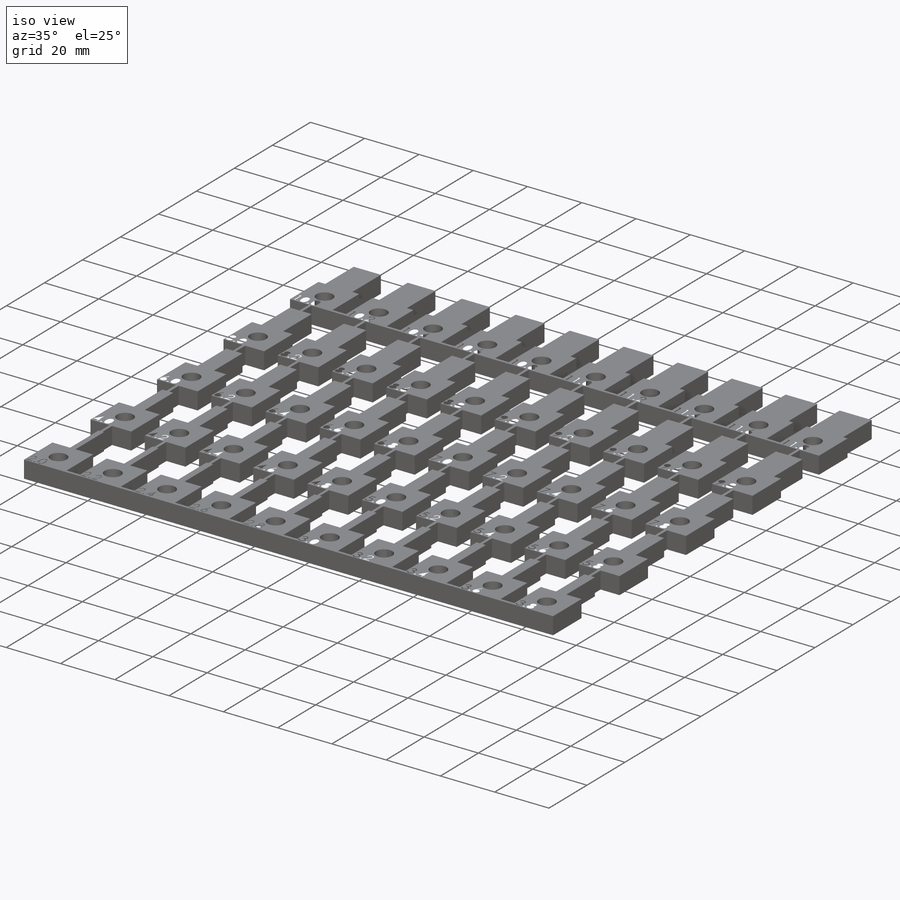
[diagram: iso view]
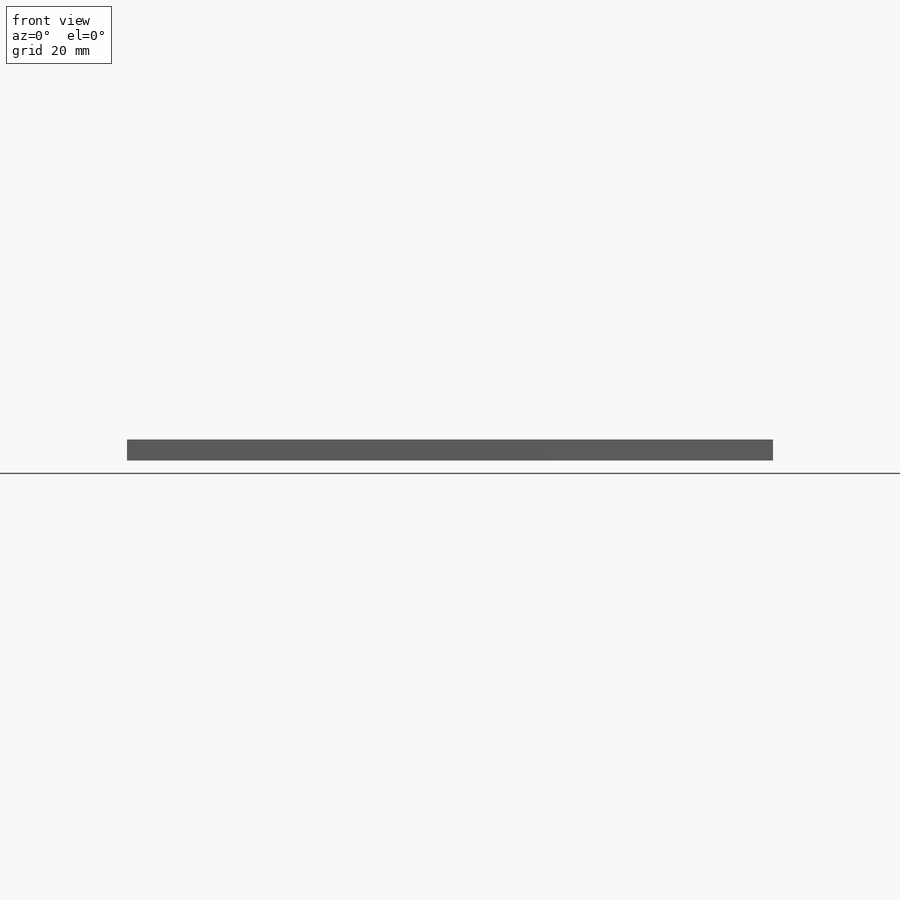
[diagram: front view]
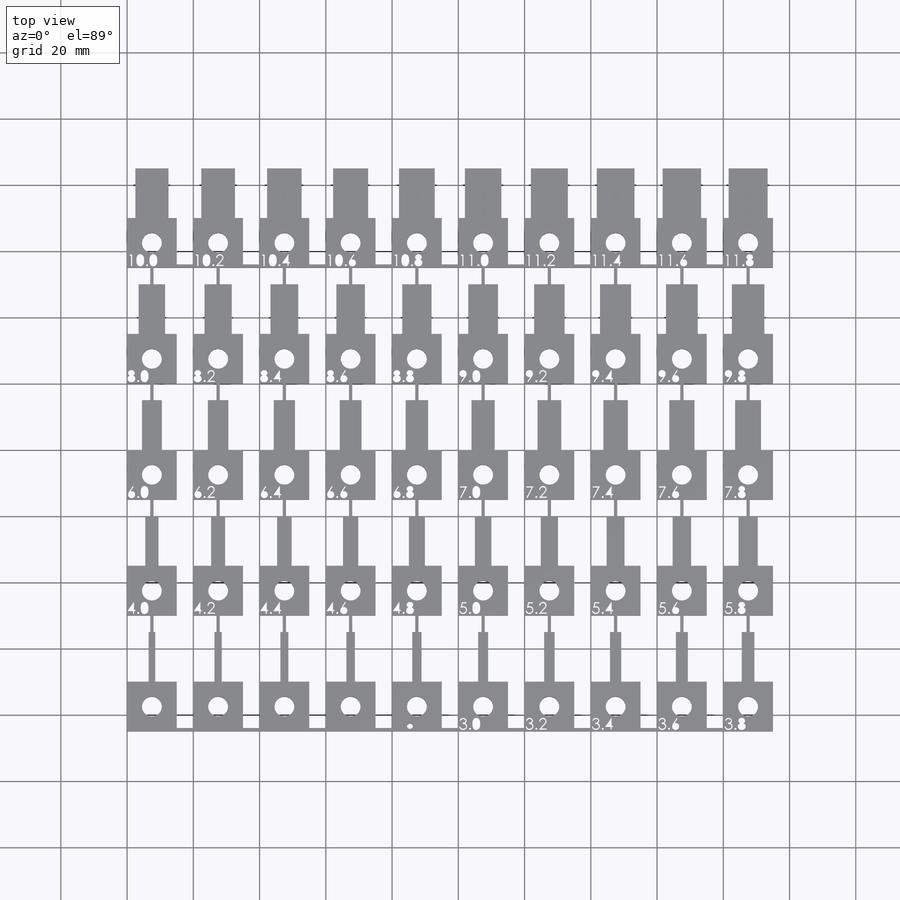
[diagram: top view]
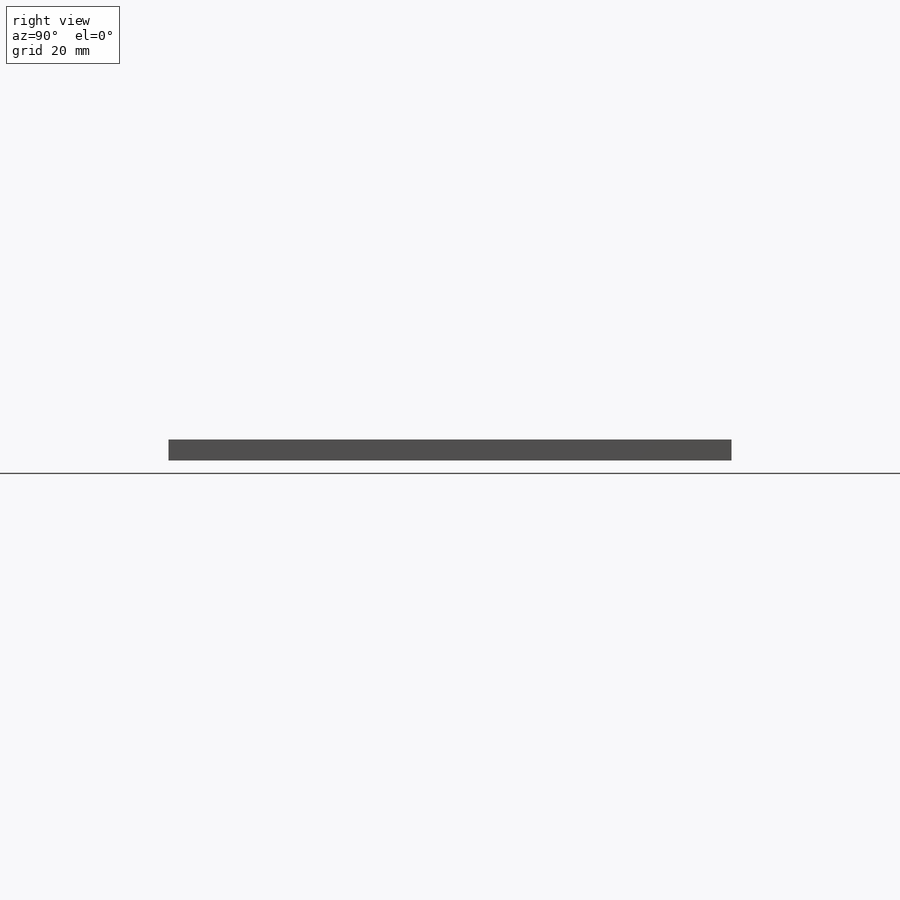
[diagram: right view]
SOLIDWORKS PART (.sldprt)
format: sldprt  version: not decoded by parser v0  size: 4,159,488 bytes
history: native  units: mm
features: sketch x3, extrude x2, material x1, cut_extrude x1 (+11 scaffold rows collapsed)
feature tree (18):
  scaffold x11  (default folders/planes/origin — collapsed)
  material  "Material <not specified>"
  sketch  "Sketch1"  dims[c1.D4=6.0mm c1.D1=25.0mm c1.D2=15.0mm c1.D3=15.0mm c2.D4=~11.334939mm c2.D5=5.0mm c2.D6=35.0mm c2.D7=2.0mm c2.D8=2.2mm c2.D9=2.4mm c2.D10=~11.334939mm c3.D10=90.0deg c4.D10=2.6mm c4.D11=2.8mm c4.D12=3.0mm c4.D13=3.2mm c4.D14=3.4mm c4.D15=3.6mm c4.D16=3.8mm c4.D17=4.0mm c4.D18=4.2mm c4.D19=4.4mm c4.D20=4.6mm c4.D21=4.8mm c4.D22=5.0mm c4.D23=5.2mm c4.D24=5.4mm c4.D25=5.6mm c4.D26=5.8mm c4.D27=6.0mm c4.D28=6.2mm c4.D29=6.4mm c4.D30=6.6mm c4.D31=6.8mm c4.D32=7.0mm c4.D33=7.2mm c4.D34=7.4mm c4.D35=7.6mm c4.D36=7.8mm c4.D37=8.0mm c4.D38=8.2mm c4.D39=8.4mm c4.D40=8.6mm c4.D41=8.8mm c4.D42=9.0mm c4.D43=9.2mm c4.D44=9.4mm c4.D45=9.6mm c4.D46=9.8mm c4.D6=5.0mm c4.D47=8.0mm c4.D48=8.2mm c4.D49=8.4mm c4.D50=8.6mm c4.D51=8.8mm c4.D52=9.0mm c4.D53=9.2mm c4.D54=9.4mm c4.D55=9.6mm c4.D56=9.8mm c5.D47=8.0mm c5.D48=8.2mm c5.D49=8.4mm c5.D50=8.6mm c5.D51=8.8mm c5.D52=11.0mm c5.D53=11.2mm c5.D54=11.4mm c5.D55=11.6mm c5.D56=11.8mm c6.D47=10.0mm c6.D48=10.2mm c6.D49=10.4mm c6.D50=10.6mm c6.D51=10.8mm c6.D57=5.0mm c6.D58=1.0mm]
  extrude  "Boss-Extrude1"  Depth=6.35mm
  sketch  "Sketch3"  dims[D1=1.0mm D2=~5.443316mm]
  extrude  "Boss-Extrude2"  [1 undecoded]
  sketch  "Sketch2"  dims[D1=0.5mm]
  cut_extrude  "Cut-Extrude1"  Depth=0.25mm
decode coverage: 5 of 6 modeling features carry decoded parameters
note: ~ marks probable driven/reference dimensions
note: 1 parameter value undecoded
note: suppression state not decoded; provenance and decode notes live in map.json
